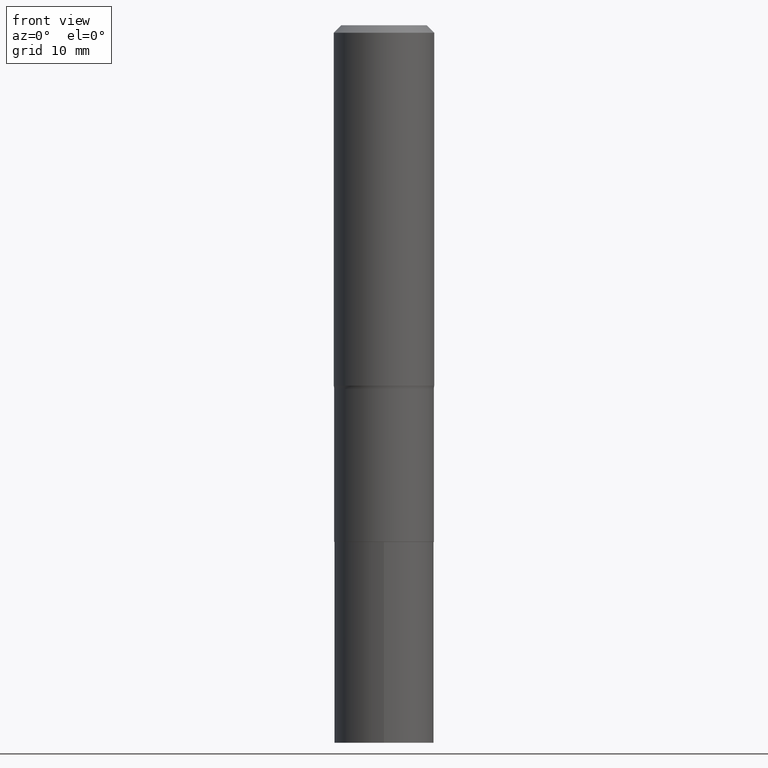
[diagram: clean part render]
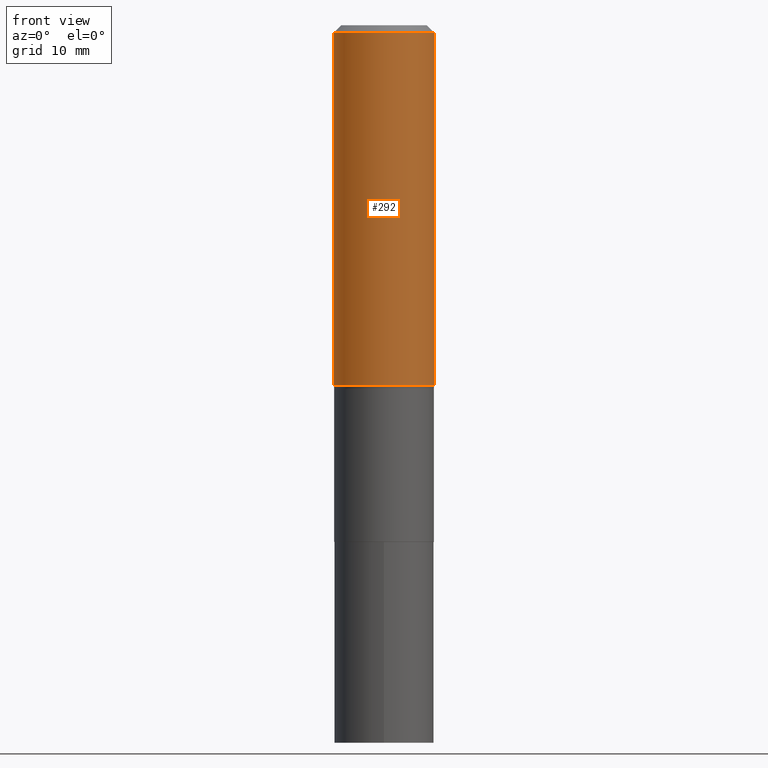
[diagram: same view with one face highlighted and labeled with its STEP entity id]
A machine part, front view. The second image highlights one B-rep face of the part: STEP entity #292.
In plain terms, the highlighted cylindrical surface (partial cylindrical patch) has radius 7.0002 mm, axis along (-0, 0, 1).
Its self-contained STEP definition (entity closure, byte-faithful):
#4 = ORIENTED_EDGE ( 'NONE', *, *, #131, .F. ) ;
#24 = VERTEX_POINT ( 'NONE', #207 ) ;
#26 = LINE ( 'NONE', #141, #273 ) ;
#39 = DIRECTION ( 'NONE',  ( -2.445468806185136597E-29, 3.491481338843145583E-15, 1.000000000000000000 ) ) ;
#40 = CARTESIAN_POINT ( 'NONE',  ( 1.010956804476941872E-30, -1.443378385477765316E-16, -0.04134000000000025848 ) ) ;
#41 = EDGE_CURVE ( 'NONE', #328, #24, #26, .T. ) ;
#69 = CIRCLE ( 'NONE', #368, 0.2756000000000000116 ) ;
#100 = DIRECTION ( 'NONE',  ( 1.000000000000000000, -6.982962677686265922E-15, 0.000000000000000000 ) ) ;
#112 = CYLINDRICAL_SURFACE ( 'NONE', #296, 0.2756000000000001227 ) ;
#124 = EDGE_LOOP ( 'NONE', ( #4, #377, #270, #379 ) ) ;
#131 = EDGE_CURVE ( 'NONE', #414, #167, #210, .T. ) ;
#136 = CARTESIAN_POINT ( 'NONE',  ( 4.836104818574080005E-29, -6.904675980341459968E-15, -1.977577798720021152 ) ) ;
#141 = CARTESIAN_POINT ( 'NONE',  ( 0.2756000000000001227, -1.924504513970336137E-15, 1.343874319409360548E-29 ) ) ;
#149 = DIRECTION ( 'NONE',  ( -2.445468806185136597E-29, 3.491481338843145583E-15, 1.000000000000000000 ) ) ;
#156 = EDGE_CURVE ( 'NONE', #414, #328, #411, .T. ) ;
#167 = VERTEX_POINT ( 'NONE', #389 ) ;
#177 = DIRECTION ( 'NONE',  ( -2.445468806185136877E-29, 3.491481338843145188E-15, 1.000000000000000000 ) ) ;
#179 = CARTESIAN_POINT ( 'NONE',  ( -0.2756000000000001227, 1.958255779754836984E-15, -1.355658510874252567E-29 ) ) ;
#185 = DIRECTION ( 'NONE',  ( 1.000000000000000000, -6.982962677686267499E-15, 0.000000000000000000 ) ) ;
#207 = CARTESIAN_POINT ( 'NONE',  ( 0.2756000000000000116, -2.068842352518111732E-15, -0.04134000000000025848 ) ) ;
#210 = LINE ( 'NONE', #179, #419 ) ;
#262 = DIRECTION ( 'NONE',  ( 1.000000000000000000, -6.982962677686267499E-15, 4.876176775795935793E-29 ) ) ;
#263 = EDGE_CURVE ( 'NONE', #167, #24, #69, .T. ) ;
#265 = AXIS2_PLACEMENT_3D ( 'NONE', #136, #464, #100 ) ;
#270 = ORIENTED_EDGE ( 'NONE', *, *, #41, .T. ) ;
#273 = VECTOR ( 'NONE', #177, 39.37007874015748143 ) ;
#274 = CARTESIAN_POINT ( 'NONE',  ( -0.2756000000000002892, -4.946420200586621012E-15, -1.977577798720021152 ) ) ;
#292 = ADVANCED_FACE ( 'NONE', ( #359 ), #112, .T. ) ;
#296 = AXIS2_PLACEMENT_3D ( 'NONE', #327, #149, #262 ) ;
#316 = DIRECTION ( 'NONE',  ( -2.445468806185136877E-29, 3.491481338843145188E-15, 1.000000000000000000 ) ) ;
#327 = CARTESIAN_POINT ( 'NONE',  ( 0.000000000000000000, 0.000000000000000000, 0.000000000000000000 ) ) ;
#328 = VERTEX_POINT ( 'NONE', #398 ) ;
#359 = FACE_OUTER_BOUND ( 'NONE', #124, .T. ) ;
#368 = AXIS2_PLACEMENT_3D ( 'NONE', #40, #39, #185 ) ;
#377 = ORIENTED_EDGE ( 'NONE', *, *, #156, .T. ) ;
#379 = ORIENTED_EDGE ( 'NONE', *, *, #263, .F. ) ;
#389 = CARTESIAN_POINT ( 'NONE',  ( -0.2756000000000000116, -1.566251129689780403E-15, -0.04134000000000025848 ) ) ;
#398 = CARTESIAN_POINT ( 'NONE',  ( 0.2756000000000002892, -8.829180494311794922E-15, -1.977577798720021152 ) ) ;
#411 = CIRCLE ( 'NONE', #265, 0.2756000000000002892 ) ;
#414 = VERTEX_POINT ( 'NONE', #274 ) ;
#419 = VECTOR ( 'NONE', #316, 39.37007874015748143 ) ;
#464 = DIRECTION ( 'NONE',  ( -2.445468806185136597E-29, 3.491481338843145583E-15, 1.000000000000000000 ) ) ;